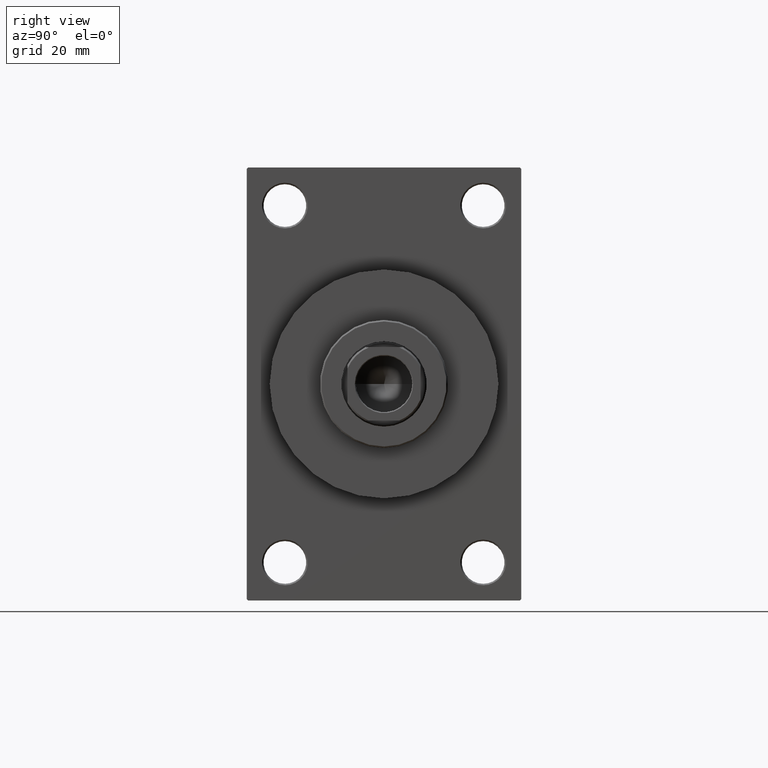
[diagram: clean part render]
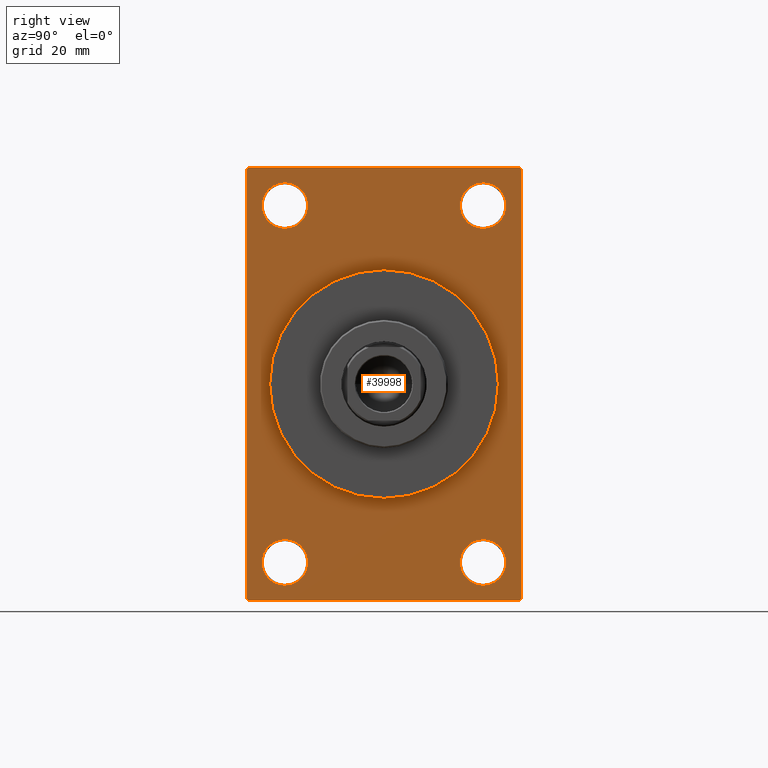
[diagram: same view with one face highlighted and labeled with its STEP entity id]
A machine part, right view. The second image highlights one B-rep face of the part: STEP entity #39998.
In plain terms, the highlighted planar face has unit normal (-1, 0, 0).
Its self-contained STEP definition (entity closure, byte-faithful):
#597 = AXIS2_PLACEMENT_3D ( 'NONE', #8269, #29785, #41224 ) ;
#646 = ORIENTED_EDGE ( 'NONE', *, *, #14978, .F. ) ;
#1319 = CARTESIAN_POINT ( 'NONE',  ( 128.0000000000000000, 32.50000000000000711, -51.00000000000001421 ) ) ;
#1934 = VERTEX_POINT ( 'NONE', #21707 ) ;
#2066 = VERTEX_POINT ( 'NONE', #26710 ) ;
#2125 = VECTOR ( 'NONE', #33458, 1000.000000000000000 ) ;
#2180 = CARTESIAN_POINT ( 'NONE',  ( 128.0000000000000000, 44.50000000000002132, 71.00000000000000000 ) ) ;
#2197 = DIRECTION ( 'NONE',  ( -1.000000000000000000, 0.000000000000000000, -0.000000000000000000 ) ) ;
#2363 = CARTESIAN_POINT ( 'NONE',  ( 128.0000000000000000, 0.000000000000000000, 0.000000000000000000 ) ) ;
#3216 = CARTESIAN_POINT ( 'NONE',  ( 128.0000000000000000, -32.50000000000000000, 65.99999999999991473 ) ) ;
#3944 = VERTEX_POINT ( 'NONE', #24164 ) ;
#4069 = LINE ( 'NONE', #32265, #4305 ) ;
#4305 = VECTOR ( 'NONE', #6712, 1000.000000000000114 ) ;
#4616 = DIRECTION ( 'NONE',  ( -1.000000000000000000, 0.000000000000000000, -0.000000000000000000 ) ) ;
#4839 = EDGE_LOOP ( 'NONE', ( #16817, #43528, #46477, #12700, #21813, #36774, #7457, #42300 ) ) ;
#5459 = DIRECTION ( 'NONE',  ( 0.000000000000000000, 0.000000000000000000, 1.000000000000000000 ) ) ;
#5700 = FACE_BOUND ( 'NONE', #27298, .T. ) ;
#5774 = VERTEX_POINT ( 'NONE', #21614 ) ;
#5831 = DIRECTION ( 'NONE',  ( -1.000000000000000000, 0.000000000000000000, -0.000000000000000000 ) ) ;
#6199 = LINE ( 'NONE', #27956, #26153 ) ;
#6303 = CARTESIAN_POINT ( 'NONE',  ( 128.0000000000000000, -32.50000000000000000, -58.49999999999999289 ) ) ;
#6352 = CARTESIAN_POINT ( 'NONE',  ( 128.0000000000000000, -32.50000000000000000, -65.99999999999995737 ) ) ;
#6371 = AXIS2_PLACEMENT_3D ( 'NONE', #2363, #13124, #12405 ) ;
#6443 = DIRECTION ( 'NONE',  ( -1.000000000000000000, 0.000000000000000000, -0.000000000000000000 ) ) ;
#6458 = CIRCLE ( 'NONE', #25515, 7.499999999999978684 ) ;
#6712 = DIRECTION ( 'NONE',  ( 0.000000000000000000, -0.7071067811865474617, 0.7071067811865474617 ) ) ;
#6734 = EDGE_CURVE ( 'NONE', #38575, #38402, #17848, .T. ) ;
#6875 = LINE ( 'NONE', #25743, #7060 ) ;
#7060 = VECTOR ( 'NONE', #36971, 999.9999999999998863 ) ;
#7367 = DIRECTION ( 'NONE',  ( 0.000000000000000000, -4.886545002751570165E-17, -1.000000000000000000 ) ) ;
#7457 = ORIENTED_EDGE ( 'NONE', *, *, #37262, .T. ) ;
#7806 = CARTESIAN_POINT ( 'NONE',  ( 128.0000000000000000, 45.00000000000001421, -70.99999999999998579 ) ) ;
#7935 = CARTESIAN_POINT ( 'NONE',  ( 128.0000000000000000, 4.592425496802575156E-15, -37.50000000000000711 ) ) ;
#8035 = ORIENTED_EDGE ( 'NONE', *, *, #24102, .T. ) ;
#8042 = VERTEX_POINT ( 'NONE', #6352 ) ;
#8269 = CARTESIAN_POINT ( 'NONE',  ( 128.0000000000000000, 0.000000000000000000, 0.000000000000000000 ) ) ;
#9047 = EDGE_CURVE ( 'NONE', #27674, #43237, #44821, .T. ) ;
#9314 = CARTESIAN_POINT ( 'NONE',  ( 128.0000000000000000, -32.50000000000000000, -51.00000000000000711 ) ) ;
#9316 = DIRECTION ( 'NONE',  ( 0.000000000000000000, 0.000000000000000000, -1.000000000000000000 ) ) ;
#9877 = ORIENTED_EDGE ( 'NONE', *, *, #6734, .T. ) ;
#10440 = CARTESIAN_POINT ( 'NONE',  ( 128.0000000000000000, 0.000000000000000000, 0.000000000000000000 ) ) ;
#10586 = EDGE_CURVE ( 'NONE', #27264, #5774, #24986, .T. ) ;
#10652 = EDGE_CURVE ( 'NONE', #3944, #37547, #43956, .T. ) ;
#11228 = VECTOR ( 'NONE', #45327, 1000.000000000000000 ) ;
#11300 = AXIS2_PLACEMENT_3D ( 'NONE', #34925, #2197, #12713 ) ;
#11720 = CIRCLE ( 'NONE', #16283, 7.499999999999909406 ) ;
#12405 = DIRECTION ( 'NONE',  ( -0.000000000000000000, 0.000000000000000000, 1.000000000000000000 ) ) ;
#12598 = EDGE_CURVE ( 'NONE', #26678, #22109, #17427, .T. ) ;
#12700 = ORIENTED_EDGE ( 'NONE', *, *, #16262, .T. ) ;
#12713 = DIRECTION ( 'NONE',  ( 0.000000000000000000, 0.000000000000000000, 1.000000000000000000 ) ) ;
#12885 = FACE_BOUND ( 'NONE', #46114, .T. ) ;
#13124 = DIRECTION ( 'NONE',  ( -1.000000000000000000, 0.000000000000000000, -0.000000000000000000 ) ) ;
#13236 = ORIENTED_EDGE ( 'NONE', *, *, #10586, .T. ) ;
#13362 = FACE_BOUND ( 'NONE', #40103, .T. ) ;
#13473 = DIRECTION ( 'NONE',  ( -0.000000000000000000, 0.7071067811865574537, 0.7071067811865376918 ) ) ;
#13876 = AXIS2_PLACEMENT_3D ( 'NONE', #42870, #35245, #31666 ) ;
#14352 = EDGE_CURVE ( 'NONE', #33922, #8042, #16608, .T. ) ;
#14978 = EDGE_CURVE ( 'NONE', #30524, #35309, #23470, .T. ) ;
#15662 = AXIS2_PLACEMENT_3D ( 'NONE', #10440, #46037, #17608 ) ;
#16262 = EDGE_CURVE ( 'NONE', #27674, #22109, #46171, .T. ) ;
#16283 = AXIS2_PLACEMENT_3D ( 'NONE', #30806, #45834, #31282 ) ;
#16608 = CIRCLE ( 'NONE', #45579, 7.499999999999985789 ) ;
#16817 = ORIENTED_EDGE ( 'NONE', *, *, #27023, .T. ) ;
#17080 = CARTESIAN_POINT ( 'NONE',  ( 128.0000000000000000, -44.99999999999997158, 70.50000000000000000 ) ) ;
#17427 = LINE ( 'NONE', #32453, #20471 ) ;
#17608 = DIRECTION ( 'NONE',  ( 0.000000000000000000, 0.000000000000000000, -1.000000000000000000 ) ) ;
#17679 = CIRCLE ( 'NONE', #13876, 7.499999999999909406 ) ;
#17771 = AXIS2_PLACEMENT_3D ( 'NONE', #6303, #5831, #28053 ) ;
#17813 = EDGE_LOOP ( 'NONE', ( #28330, #27801 ) ) ;
#17848 = CIRCLE ( 'NONE', #43802, 7.499999999999909406 ) ;
#19052 = VERTEX_POINT ( 'NONE', #2180 ) ;
#19187 = DIRECTION ( 'NONE',  ( 0.000000000000000000, 0.000000000000000000, 1.000000000000000000 ) ) ;
#20040 = FACE_OUTER_BOUND ( 'NONE', #4839, .T. ) ;
#20471 = VECTOR ( 'NONE', #7367, 1000.000000000000000 ) ;
#21614 = CARTESIAN_POINT ( 'NONE',  ( 128.0000000000000000, 32.50000000000000711, 51.00000000000009948 ) ) ;
#21707 = CARTESIAN_POINT ( 'NONE',  ( 128.0000000000000000, -44.99999999999997158, -70.50000000000002842 ) ) ;
#21813 = ORIENTED_EDGE ( 'NONE', *, *, #12598, .F. ) ;
#22109 = VERTEX_POINT ( 'NONE', #35601 ) ;
#22396 = DIRECTION ( 'NONE',  ( 0.000000000000000000, -1.000000000000000000, -1.541976423090495633E-16 ) ) ;
#23377 = CARTESIAN_POINT ( 'NONE',  ( 128.0000000000000000, 45.00000000000002132, 71.00000000000000000 ) ) ;
#23470 = CIRCLE ( 'NONE', #597, 37.50000000000000711 ) ;
#24102 = EDGE_CURVE ( 'NONE', #5774, #27264, #17679, .T. ) ;
#24164 = CARTESIAN_POINT ( 'NONE',  ( 128.0000000000000000, -44.49999999999995026, 70.99999999999998579 ) ) ;
#24331 = FACE_BOUND ( 'NONE', #47153, .T. ) ;
#24986 = CIRCLE ( 'NONE', #11300, 7.499999999999909406 ) ;
#25481 = VECTOR ( 'NONE', #22396, 1000.000000000000000 ) ;
#25515 = AXIS2_PLACEMENT_3D ( 'NONE', #27719, #6443, #31306 ) ;
#25743 = CARTESIAN_POINT ( 'NONE',  ( 128.0000000000000000, -44.49999999999997158, -71.00000000000000000 ) ) ;
#25852 = VECTOR ( 'NONE', #13473, 999.9999999999998863 ) ;
#26153 = VECTOR ( 'NONE', #9316, 1000.000000000000000 ) ;
#26186 = DIRECTION ( 'NONE',  ( -1.000000000000000000, 0.000000000000000000, -0.000000000000000000 ) ) ;
#26678 = VERTEX_POINT ( 'NONE', #44794 ) ;
#26710 = CARTESIAN_POINT ( 'NONE',  ( 128.0000000000000000, 32.50000000000000711, -65.99999999999997158 ) ) ;
#27023 = EDGE_CURVE ( 'NONE', #37547, #1934, #6199, .T. ) ;
#27216 = PLANE ( 'NONE',  #6371 ) ;
#27264 = VERTEX_POINT ( 'NONE', #30764 ) ;
#27298 = EDGE_LOOP ( 'NONE', ( #40186, #47096 ) ) ;
#27559 = CARTESIAN_POINT ( 'NONE',  ( 128.0000000000000000, 45.00000000000001421, -70.50000000000001421 ) ) ;
#27674 = VERTEX_POINT ( 'NONE', #33145 ) ;
#27719 = CARTESIAN_POINT ( 'NONE',  ( 128.0000000000000000, 32.50000000000000711, -58.50000000000000000 ) ) ;
#27801 = ORIENTED_EDGE ( 'NONE', *, *, #14352, .T. ) ;
#27956 = CARTESIAN_POINT ( 'NONE',  ( 128.0000000000000000, -44.99999999999997158, 70.99999999999998579 ) ) ;
#27977 = VERTEX_POINT ( 'NONE', #1319 ) ;
#28053 = DIRECTION ( 'NONE',  ( 0.000000000000000000, 0.000000000000000000, 1.000000000000000000 ) ) ;
#28330 = ORIENTED_EDGE ( 'NONE', *, *, #31596, .T. ) ;
#29153 = CARTESIAN_POINT ( 'NONE',  ( 128.0000000000000000, -44.99999999999997158, 70.50000000000000000 ) ) ;
#29230 = CARTESIAN_POINT ( 'NONE',  ( 128.0000000000000000, 32.50000000000000711, -58.50000000000000000 ) ) ;
#29785 = DIRECTION ( 'NONE',  ( 1.000000000000000000, 0.000000000000000000, 0.000000000000000000 ) ) ;
#30083 = EDGE_CURVE ( 'NONE', #27977, #2066, #33758, .T. ) ;
#30524 = VERTEX_POINT ( 'NONE', #7935 ) ;
#30764 = CARTESIAN_POINT ( 'NONE',  ( 128.0000000000000000, 32.50000000000000711, 65.99999999999991473 ) ) ;
#30791 = FACE_BOUND ( 'NONE', #17813, .T. ) ;
#30806 = CARTESIAN_POINT ( 'NONE',  ( 128.0000000000000000, -32.50000000000000000, 58.50000000000000711 ) ) ;
#31089 = ORIENTED_EDGE ( 'NONE', *, *, #31717, .T. ) ;
#31166 = EDGE_CURVE ( 'NONE', #1934, #43237, #6875, .T. ) ;
#31282 = DIRECTION ( 'NONE',  ( 0.000000000000000000, 0.000000000000000000, 1.000000000000000000 ) ) ;
#31306 = DIRECTION ( 'NONE',  ( 0.000000000000000000, 0.000000000000000000, 1.000000000000000000 ) ) ;
#31596 = EDGE_CURVE ( 'NONE', #8042, #33922, #46774, .T. ) ;
#31666 = DIRECTION ( 'NONE',  ( 0.000000000000000000, 0.000000000000000000, 1.000000000000000000 ) ) ;
#31717 = EDGE_CURVE ( 'NONE', #38402, #38575, #11720, .T. ) ;
#32265 = CARTESIAN_POINT ( 'NONE',  ( 128.0000000000000000, 44.50000000000002132, 71.00000000000000000 ) ) ;
#32453 = CARTESIAN_POINT ( 'NONE',  ( 128.0000000000000000, 45.00000000000002132, 71.00000000000000000 ) ) ;
#33145 = CARTESIAN_POINT ( 'NONE',  ( 128.0000000000000000, 44.50000000000004263, -70.99999999999998579 ) ) ;
#33458 = DIRECTION ( 'NONE',  ( -0.000000000000000000, -0.7071067811865622277, -0.7071067811865328068 ) ) ;
#33758 = CIRCLE ( 'NONE', #44402, 7.499999999999978684 ) ;
#33922 = VERTEX_POINT ( 'NONE', #9314 ) ;
#34684 = EDGE_CURVE ( 'NONE', #2066, #27977, #6458, .T. ) ;
#34925 = CARTESIAN_POINT ( 'NONE',  ( 128.0000000000000000, 32.50000000000000711, 58.50000000000000711 ) ) ;
#35245 = DIRECTION ( 'NONE',  ( -1.000000000000000000, 0.000000000000000000, -0.000000000000000000 ) ) ;
#35309 = VERTEX_POINT ( 'NONE', #42866 ) ;
#35601 = CARTESIAN_POINT ( 'NONE',  ( 128.0000000000000000, 45.00000000000001421, -70.50000000000001421 ) ) ;
#36698 = CARTESIAN_POINT ( 'NONE',  ( 128.0000000000000000, -32.50000000000000000, -58.49999999999999289 ) ) ;
#36774 = ORIENTED_EDGE ( 'NONE', *, *, #45810, .T. ) ;
#36971 = DIRECTION ( 'NONE',  ( 0.000000000000000000, 0.7071067811865771047, -0.7071067811865180408 ) ) ;
#37262 = EDGE_CURVE ( 'NONE', #19052, #3944, #45568, .T. ) ;
#37547 = VERTEX_POINT ( 'NONE', #17080 ) ;
#37595 = CARTESIAN_POINT ( 'NONE',  ( 128.0000000000000000, -32.50000000000000000, 51.00000000000009948 ) ) ;
#38402 = VERTEX_POINT ( 'NONE', #3216 ) ;
#38531 = CIRCLE ( 'NONE', #15662, 37.50000000000000711 ) ;
#38575 = VERTEX_POINT ( 'NONE', #37595 ) ;
#39998 = ADVANCED_FACE ( 'NONE', ( #24331, #30791, #5700, #13362, #12885, #20040 ), #27216, .F. ) ;
#40024 = ORIENTED_EDGE ( 'NONE', *, *, #43929, .F. ) ;
#40103 = EDGE_LOOP ( 'NONE', ( #8035, #13236 ) ) ;
#40186 = ORIENTED_EDGE ( 'NONE', *, *, #34684, .T. ) ;
#40749 = DIRECTION ( 'NONE',  ( 0.000000000000000000, 0.000000000000000000, 1.000000000000000000 ) ) ;
#41224 = DIRECTION ( 'NONE',  ( 0.000000000000000000, 0.000000000000000000, -1.000000000000000000 ) ) ;
#42300 = ORIENTED_EDGE ( 'NONE', *, *, #10652, .T. ) ;
#42866 = CARTESIAN_POINT ( 'NONE',  ( 128.0000000000000000, 0.000000000000000000, 37.50000000000000711 ) ) ;
#42870 = CARTESIAN_POINT ( 'NONE',  ( 128.0000000000000000, 32.50000000000000711, 58.50000000000000711 ) ) ;
#43237 = VERTEX_POINT ( 'NONE', #44863 ) ;
#43528 = ORIENTED_EDGE ( 'NONE', *, *, #31166, .T. ) ;
#43802 = AXIS2_PLACEMENT_3D ( 'NONE', #45819, #45348, #5459 ) ;
#43929 = EDGE_CURVE ( 'NONE', #35309, #30524, #38531, .T. ) ;
#43956 = LINE ( 'NONE', #29153, #2125 ) ;
#44402 = AXIS2_PLACEMENT_3D ( 'NONE', #29230, #4616, #19187 ) ;
#44794 = CARTESIAN_POINT ( 'NONE',  ( 128.0000000000000000, 45.00000000000002132, 70.50000000000000000 ) ) ;
#44821 = LINE ( 'NONE', #7806, #25481 ) ;
#44863 = CARTESIAN_POINT ( 'NONE',  ( 128.0000000000000000, -44.49999999999994316, -71.00000000000000000 ) ) ;
#45327 = DIRECTION ( 'NONE',  ( 0.000000000000000000, -1.000000000000000000, -1.541976423090495387E-16 ) ) ;
#45348 = DIRECTION ( 'NONE',  ( -1.000000000000000000, 0.000000000000000000, -0.000000000000000000 ) ) ;
#45568 = LINE ( 'NONE', #23377, #11228 ) ;
#45579 = AXIS2_PLACEMENT_3D ( 'NONE', #36698, #26186, #40749 ) ;
#45810 = EDGE_CURVE ( 'NONE', #26678, #19052, #4069, .T. ) ;
#45819 = CARTESIAN_POINT ( 'NONE',  ( 128.0000000000000000, -32.50000000000000000, 58.50000000000000711 ) ) ;
#45834 = DIRECTION ( 'NONE',  ( -1.000000000000000000, 0.000000000000000000, -0.000000000000000000 ) ) ;
#46037 = DIRECTION ( 'NONE',  ( 1.000000000000000000, 0.000000000000000000, 0.000000000000000000 ) ) ;
#46114 = EDGE_LOOP ( 'NONE', ( #40024, #646 ) ) ;
#46171 = LINE ( 'NONE', #27559, #25852 ) ;
#46477 = ORIENTED_EDGE ( 'NONE', *, *, #9047, .F. ) ;
#46774 = CIRCLE ( 'NONE', #17771, 7.499999999999985789 ) ;
#47096 = ORIENTED_EDGE ( 'NONE', *, *, #30083, .T. ) ;
#47153 = EDGE_LOOP ( 'NONE', ( #9877, #31089 ) ) ;